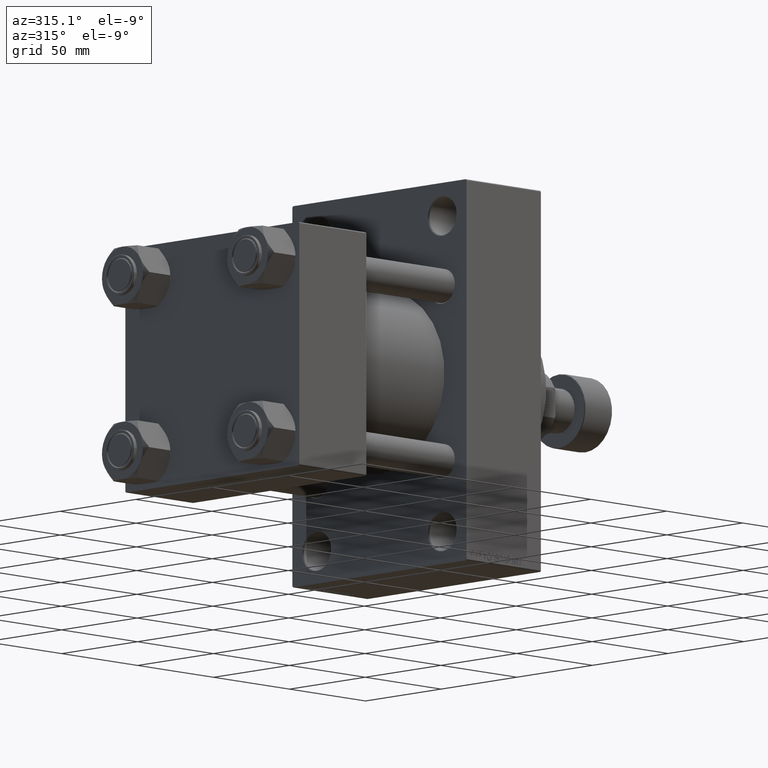
[diagram: clean part render]
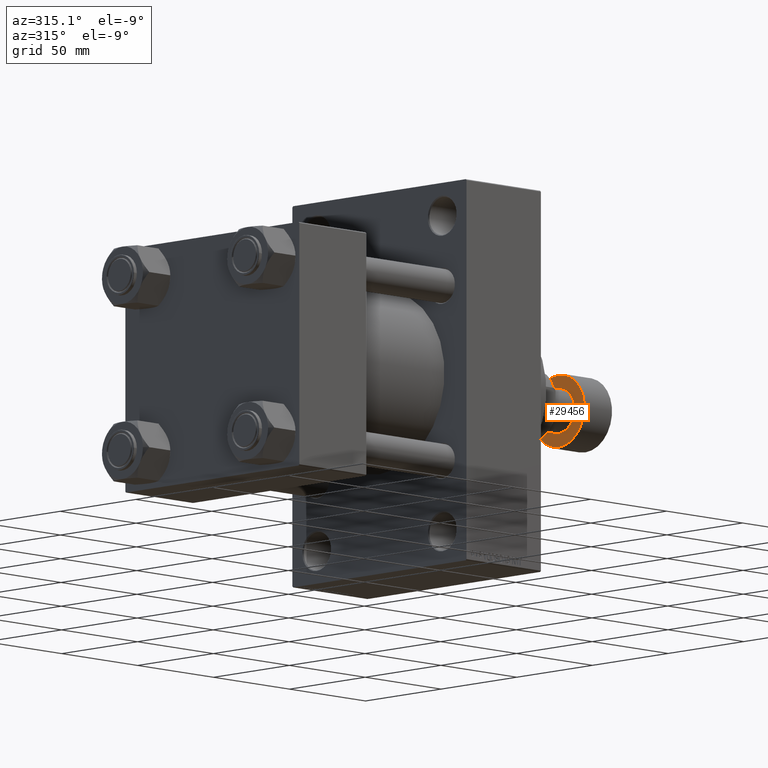
[diagram: same view with one face highlighted and labeled with its STEP entity id]
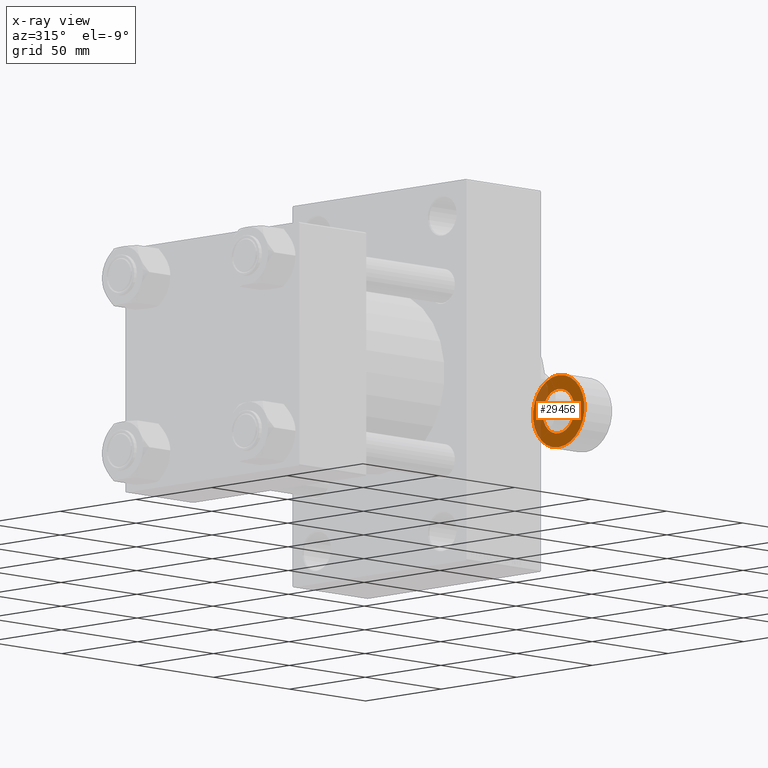
[diagram: x-ray of the same camera — body ghosted, the highlighted face saturated]
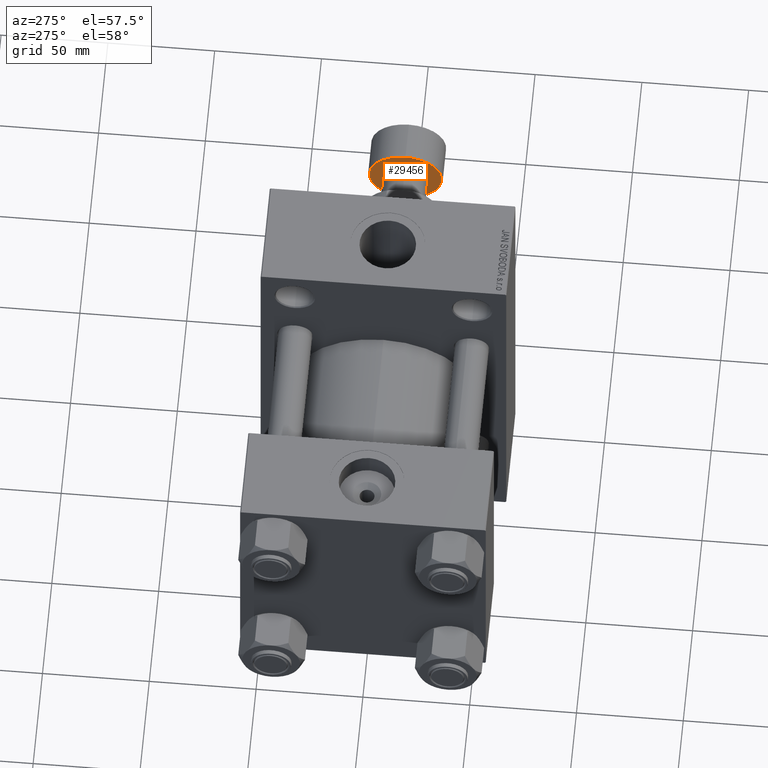
[diagram: same view with one face highlighted and labeled with its STEP entity id]
A machine part, auxiliary view. The second image highlights one B-rep face of the part: STEP entity #29456.
The next image is the same camera in x-ray: the body ghosted, the highlighted face saturated — about 26% of this face is hidden behind the body in this view.
A second angle (auxiliary view) of the same face is appended — the face is thin or edge-on in the first view.
In plain terms, the highlighted planar face has unit normal (1, 0, 0).
Its self-contained STEP definition (entity closure, byte-faithful):
#1367 = AXIS2_PLACEMENT_3D ( 'NONE', #17479, #2659, #17728 ) ;
#2127 = DIRECTION ( 'NONE',  ( 1.000000000000000000, 0.000000000000000000, 0.000000000000000000 ) ) ;
#2659 = DIRECTION ( 'NONE',  ( -0.000000000000000000, -0.000000000000000000, -1.000000000000000000 ) ) ;
#3197 = DIRECTION ( 'NONE',  ( -1.000000000000000000, 0.000000000000000000, 0.000000000000000000 ) ) ;
#3485 = CARTESIAN_POINT ( 'NONE',  ( 0.000000000000000000, 0.000000000000000000, -18.00000000000000000 ) ) ;
#5157 = CARTESIAN_POINT ( 'NONE',  ( -10.50000000000000000, 1.285879139104720831E-15, -18.00000000000000000 ) ) ;
#5267 = CIRCLE ( 'NONE', #1367, 17.00000000000000355 ) ;
#6349 = PLANE ( 'NONE',  #14429 ) ;
#7101 = AXIS2_PLACEMENT_3D ( 'NONE', #3485, #33183, #32692 ) ;
#7205 = EDGE_CURVE ( 'NONE', #9938, #29142, #5267, .T. ) ;
#9423 = DIRECTION ( 'NONE',  ( -0.000000000000000000, -0.000000000000000000, -1.000000000000000000 ) ) ;
#9938 = VERTEX_POINT ( 'NONE', #38810 ) ;
#9985 = FACE_BOUND ( 'NONE', #39933, .T. ) ;
#10464 = DIRECTION ( 'NONE',  ( 1.000000000000000000, 0.000000000000000000, -0.000000000000000000 ) ) ;
#13876 = FACE_OUTER_BOUND ( 'NONE', #26622, .T. ) ;
#14072 = EDGE_CURVE ( 'NONE', #29142, #9938, #19477, .T. ) ;
#14429 = AXIS2_PLACEMENT_3D ( 'NONE', #18004, #28733, #10464 ) ;
#15593 = AXIS2_PLACEMENT_3D ( 'NONE', #24022, #9423, #2127 ) ;
#15599 = EDGE_CURVE ( 'NONE', #23838, #18816, #21077, .T. ) ;
#17479 = CARTESIAN_POINT ( 'NONE',  ( 0.000000000000000000, 0.000000000000000000, -18.00000000000000000 ) ) ;
#17574 = CARTESIAN_POINT ( 'NONE',  ( 17.00000000000000355, 0.000000000000000000, -18.00000000000000000 ) ) ;
#17728 = DIRECTION ( 'NONE',  ( 1.000000000000000000, 0.000000000000000000, 0.000000000000000000 ) ) ;
#18004 = CARTESIAN_POINT ( 'NONE',  ( 0.000000000000000000, 0.000000000000000000, -18.00000000000000000 ) ) ;
#18816 = VERTEX_POINT ( 'NONE', #5157 ) ;
#19477 = CIRCLE ( 'NONE', #15593, 17.00000000000000355 ) ;
#21077 = CIRCLE ( 'NONE', #7101, 10.50000000000000000 ) ;
#21437 = CIRCLE ( 'NONE', #27677, 10.50000000000000000 ) ;
#23838 = VERTEX_POINT ( 'NONE', #35235 ) ;
#24022 = CARTESIAN_POINT ( 'NONE',  ( 0.000000000000000000, 0.000000000000000000, -18.00000000000000000 ) ) ;
#24840 = DIRECTION ( 'NONE',  ( 0.000000000000000000, 0.000000000000000000, -1.000000000000000000 ) ) ;
#26622 = EDGE_LOOP ( 'NONE', ( #30522, #29283 ) ) ;
#27677 = AXIS2_PLACEMENT_3D ( 'NONE', #35816, #24840, #3197 ) ;
#28733 = DIRECTION ( 'NONE',  ( 0.000000000000000000, 0.000000000000000000, 1.000000000000000000 ) ) ;
#29142 = VERTEX_POINT ( 'NONE', #17574 ) ;
#29283 = ORIENTED_EDGE ( 'NONE', *, *, #7205, .T. ) ;
#29456 = ADVANCED_FACE ( 'NONE', ( #13876, #9985 ), #6349, .F. ) ;
#30383 = ORIENTED_EDGE ( 'NONE', *, *, #30523, .F. ) ;
#30522 = ORIENTED_EDGE ( 'NONE', *, *, #14072, .T. ) ;
#30523 = EDGE_CURVE ( 'NONE', #18816, #23838, #21437, .T. ) ;
#32692 = DIRECTION ( 'NONE',  ( -1.000000000000000000, 0.000000000000000000, 0.000000000000000000 ) ) ;
#33183 = DIRECTION ( 'NONE',  ( 0.000000000000000000, 0.000000000000000000, -1.000000000000000000 ) ) ;
#35235 = CARTESIAN_POINT ( 'NONE',  ( 10.50000000000000000, 0.000000000000000000, -18.00000000000000000 ) ) ;
#35816 = CARTESIAN_POINT ( 'NONE',  ( 0.000000000000000000, 0.000000000000000000, -18.00000000000000000 ) ) ;
#38810 = CARTESIAN_POINT ( 'NONE',  ( -17.00000000000000355, 2.112515728529184856E-15, -18.00000000000000000 ) ) ;
#39590 = ORIENTED_EDGE ( 'NONE', *, *, #15599, .F. ) ;
#39933 = EDGE_LOOP ( 'NONE', ( #39590, #30383 ) ) ;